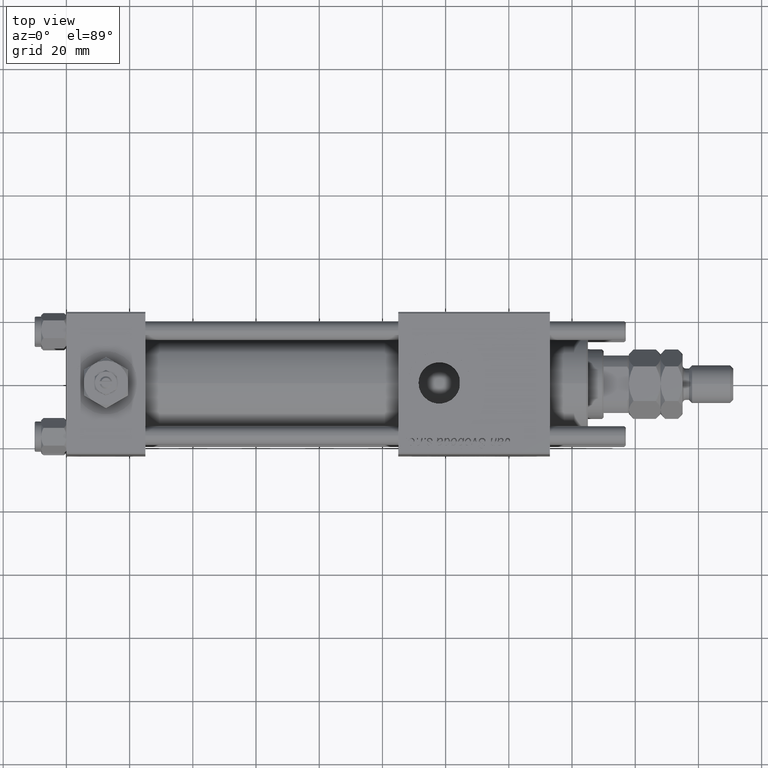
[diagram: clean part render]
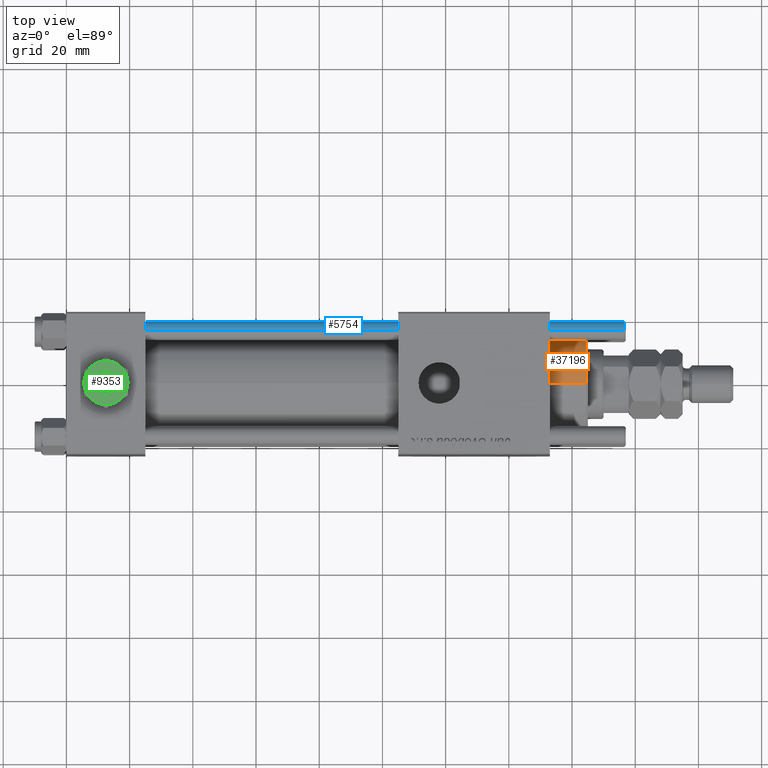
[diagram: same view with three faces highlighted in distinct colors, each labeled with its STEP entity id]
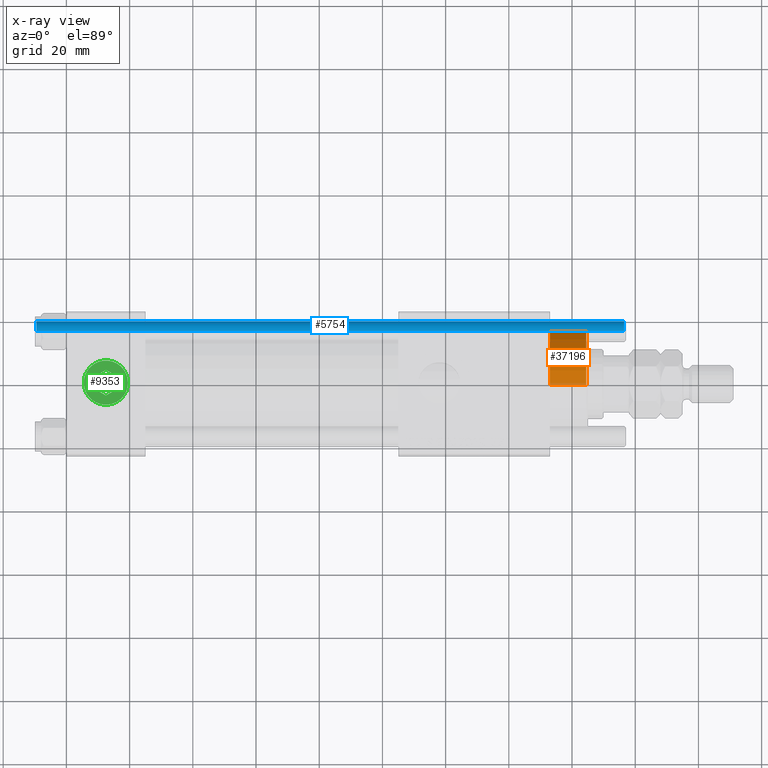
[diagram: x-ray of the same camera — body ghosted, the three highlighted faces saturated]
A machine part, top view with three faces highlighted in distinct colors.
The next image is the same camera in x-ray (body ghosted, the three faces saturated) — at least one of them is partly hidden behind the body in this view.
Their STEP definitions:

[orange] entity #37196 — the highlighted cylindrical surface (partial cylindrical patch) has radius 17 mm, axis along (-1, -0, 0).
#91 = CYLINDRICAL_SURFACE ( 'NONE', #42956, 17.00000000000000000 ) ;
#387 = DIRECTION ( 'NONE',  ( -1.000000000000000000, 0.000000000000000000, 0.000000000000000000 ) ) ;
#690 = FACE_OUTER_BOUND ( 'NONE', #24500, .T. ) ;
#2393 = VECTOR ( 'NONE', #41795, 1000.000000000000000 ) ;
#9897 = CARTESIAN_POINT ( 'NONE',  ( 17.00000000000000000, 2.081899558550500280E-15, 40.70000000000000284 ) ) ;
#10683 = ORIENTED_EDGE ( 'NONE', *, *, #26494, .F. ) ;
#10986 = ORIENTED_EDGE ( 'NONE', *, *, #14739, .T. ) ;
#11021 = AXIS2_PLACEMENT_3D ( 'NONE', #39226, #57794, #33494 ) ;
#11742 = AXIS2_PLACEMENT_3D ( 'NONE', #56541, #42538, #52562 ) ;
#14045 = ORIENTED_EDGE ( 'NONE', *, *, #48308, .T. ) ;
#14739 = EDGE_CURVE ( 'NONE', #48866, #37269, #23415, .T. ) ;
#15261 = DIRECTION ( 'NONE',  ( -0.000000000000000000, -0.000000000000000000, -1.000000000000000000 ) ) ;
#17504 = CARTESIAN_POINT ( 'NONE',  ( 17.00000000000000000, 2.081899558550500280E-15, 28.69999999999999929 ) ) ;
#19235 = CARTESIAN_POINT ( 'NONE',  ( 0.000000000000000000, 0.000000000000000000, 40.70000000000000284 ) ) ;
#23415 = CIRCLE ( 'NONE', #11742, 17.00000000000000000 ) ;
#24500 = EDGE_LOOP ( 'NONE', ( #10986, #14045, #27320, #10683 ) ) ;
#26494 = EDGE_CURVE ( 'NONE', #48866, #48135, #57406, .T. ) ;
#27320 = ORIENTED_EDGE ( 'NONE', *, *, #43351, .T. ) ;
#28725 = VERTEX_POINT ( 'NONE', #17504 ) ;
#33491 = VECTOR ( 'NONE', #52830, 1000.000000000000000 ) ;
#33494 = DIRECTION ( 'NONE',  ( 1.000000000000000000, 0.000000000000000000, 0.000000000000000000 ) ) ;
#37196 = ADVANCED_FACE ( 'NONE', ( #690 ), #91, .T. ) ;
#37230 = CIRCLE ( 'NONE', #11021, 17.00000000000000000 ) ;
#37269 = VERTEX_POINT ( 'NONE', #53230 ) ;
#38843 = CARTESIAN_POINT ( 'NONE',  ( -17.00000000000000000, 0.000000000000000000, 40.70000000000000284 ) ) ;
#39226 = CARTESIAN_POINT ( 'NONE',  ( 0.000000000000000000, 0.000000000000000000, 28.69999999999999929 ) ) ;
#41795 = DIRECTION ( 'NONE',  ( -0.000000000000000000, -0.000000000000000000, -1.000000000000000000 ) ) ;
#42094 = LINE ( 'NONE', #9897, #2393 ) ;
#42538 = DIRECTION ( 'NONE',  ( 0.000000000000000000, 0.000000000000000000, -1.000000000000000000 ) ) ;
#42956 = AXIS2_PLACEMENT_3D ( 'NONE', #19235, #15261, #387 ) ;
#43351 = EDGE_CURVE ( 'NONE', #28725, #48135, #37230, .T. ) ;
#43353 = CARTESIAN_POINT ( 'NONE',  ( -17.00000000000000000, 0.000000000000000000, 28.69999999999999929 ) ) ;
#48135 = VERTEX_POINT ( 'NONE', #43353 ) ;
#48308 = EDGE_CURVE ( 'NONE', #37269, #28725, #42094, .T. ) ;
#48866 = VERTEX_POINT ( 'NONE', #53542 ) ;
#52562 = DIRECTION ( 'NONE',  ( 1.000000000000000000, 0.000000000000000000, 0.000000000000000000 ) ) ;
#52830 = DIRECTION ( 'NONE',  ( -0.000000000000000000, -0.000000000000000000, -1.000000000000000000 ) ) ;
#53230 = CARTESIAN_POINT ( 'NONE',  ( 17.00000000000000000, 2.081899558550500280E-15, 40.19999999999999574 ) ) ;
#53542 = CARTESIAN_POINT ( 'NONE',  ( -17.00000000000000000, 0.000000000000000000, 40.19999999999999574 ) ) ;
#56541 = CARTESIAN_POINT ( 'NONE',  ( 0.000000000000000000, 0.000000000000000000, 40.19999999999999574 ) ) ;
#57406 = LINE ( 'NONE', #38843, #33491 ) ;
#57794 = DIRECTION ( 'NONE',  ( 0.000000000000000000, 0.000000000000000000, 1.000000000000000000 ) ) ;

[blue] entity #5754 — the highlighted cylindrical surface (edge-blend (fillet) strip) has radius 3 mm, axis along (1, -0, -0).
#1795 = CARTESIAN_POINT ( 'NONE',  ( 0.000000000000000000, 0.000000000000000000, 187.0000000000000000 ) ) ;
#2447 = VERTEX_POINT ( 'NONE', #56661 ) ;
#3929 = CARTESIAN_POINT ( 'NONE',  ( 0.000000000000000000, 0.000000000000000000, 0.5000000000000281997 ) ) ;
#4822 = CARTESIAN_POINT ( 'NONE',  ( 3.000000000000000444, 3.673940397442060361E-16, 187.0000000000000000 ) ) ;
#5043 = EDGE_LOOP ( 'NONE', ( #5187, #56237, #8891, #45592 ) ) ;
#5187 = ORIENTED_EDGE ( 'NONE', *, *, #22728, .T. ) ;
#5754 = ADVANCED_FACE ( 'NONE', ( #58329 ), #53148, .T. ) ;
#6777 = VECTOR ( 'NONE', #22182, 1000.000000000000000 ) ;
#7906 = CARTESIAN_POINT ( 'NONE',  ( -3.000000000000000444, 0.000000000000000000, 187.0000000000000000 ) ) ;
#8005 = AXIS2_PLACEMENT_3D ( 'NONE', #57959, #21176, #16614 ) ;
#8891 = ORIENTED_EDGE ( 'NONE', *, *, #52123, .T. ) ;
#11922 = DIRECTION ( 'NONE',  ( -0.000000000000000000, -0.000000000000000000, 1.000000000000000000 ) ) ;
#13797 = VERTEX_POINT ( 'NONE', #27803 ) ;
#16614 = DIRECTION ( 'NONE',  ( 1.000000000000000000, 0.000000000000000000, 0.000000000000000000 ) ) ;
#16708 = VERTEX_POINT ( 'NONE', #40096 ) ;
#20042 = DIRECTION ( 'NONE',  ( -0.000000000000000000, -0.000000000000000000, -1.000000000000000000 ) ) ;
#20156 = AXIS2_PLACEMENT_3D ( 'NONE', #1795, #20042, #52546 ) ;
#21176 = DIRECTION ( 'NONE',  ( 0.000000000000000000, 0.000000000000000000, -1.000000000000000000 ) ) ;
#21903 = EDGE_CURVE ( 'NONE', #2447, #32452, #22465, .T. ) ;
#22182 = DIRECTION ( 'NONE',  ( -0.000000000000000000, -0.000000000000000000, -1.000000000000000000 ) ) ;
#22465 = LINE ( 'NONE', #4822, #40951 ) ;
#22534 = CIRCLE ( 'NONE', #8005, 3.000000000000000444 ) ;
#22728 = EDGE_CURVE ( 'NONE', #13797, #2447, #22534, .T. ) ;
#27803 = CARTESIAN_POINT ( 'NONE',  ( -3.000000000000000444, 0.000000000000000000, 186.5000000000000568 ) ) ;
#30213 = EDGE_CURVE ( 'NONE', #13797, #16708, #49537, .T. ) ;
#32452 = VERTEX_POINT ( 'NONE', #56676 ) ;
#37477 = AXIS2_PLACEMENT_3D ( 'NONE', #3929, #11922, #57219 ) ;
#40096 = CARTESIAN_POINT ( 'NONE',  ( -3.000000000000000444, 0.000000000000000000, 0.5000000000000281997 ) ) ;
#40951 = VECTOR ( 'NONE', #40979, 1000.000000000000000 ) ;
#40979 = DIRECTION ( 'NONE',  ( -0.000000000000000000, -0.000000000000000000, -1.000000000000000000 ) ) ;
#44239 = CIRCLE ( 'NONE', #37477, 3.000000000000000444 ) ;
#45592 = ORIENTED_EDGE ( 'NONE', *, *, #30213, .F. ) ;
#49537 = LINE ( 'NONE', #7906, #6777 ) ;
#52123 = EDGE_CURVE ( 'NONE', #32452, #16708, #44239, .T. ) ;
#52546 = DIRECTION ( 'NONE',  ( -1.000000000000000000, 0.000000000000000000, 0.000000000000000000 ) ) ;
#53148 = CYLINDRICAL_SURFACE ( 'NONE', #20156, 3.000000000000000444 ) ;
#56237 = ORIENTED_EDGE ( 'NONE', *, *, #21903, .T. ) ;
#56661 = CARTESIAN_POINT ( 'NONE',  ( 3.000000000000000444, 3.673940397442060361E-16, 186.5000000000000568 ) ) ;
#56676 = CARTESIAN_POINT ( 'NONE',  ( 3.000000000000000444, 3.673940397442060361E-16, 0.5000000000000281997 ) ) ;
#57219 = DIRECTION ( 'NONE',  ( 1.000000000000000000, 0.000000000000000000, 0.000000000000000000 ) ) ;
#57959 = CARTESIAN_POINT ( 'NONE',  ( 0.000000000000000000, 0.000000000000000000, 186.5000000000000568 ) ) ;
#58329 = FACE_OUTER_BOUND ( 'NONE', #5043, .T. ) ;

[green] entity #9353 — the highlighted planar face has unit normal (0, 0, 1).
#318 = CARTESIAN_POINT ( 'NONE',  ( -3.499999999999998668, -2.020725942163689837, 4.299999999999999822 ) ) ;
#1488 = DIRECTION ( 'NONE',  ( 0.000000000000000000, 0.000000000000000000, 1.000000000000000000 ) ) ;
#1688 = AXIS2_PLACEMENT_3D ( 'NONE', #11076, #6513, #25060 ) ;
#2167 = DIRECTION ( 'NONE',  ( -0.8660254037844387076, 0.4999999999999998335, 0.000000000000000000 ) ) ;
#2504 = VERTEX_POINT ( 'NONE', #21379 ) ;
#3051 = CARTESIAN_POINT ( 'NONE',  ( 0.000000000000000000, 4.041451884327380562, 4.299999999999999822 ) ) ;
#4016 = EDGE_LOOP ( 'NONE', ( #27587, #13591, #43089, #46061, #53749, #37891 ) ) ;
#4260 = LINE ( 'NONE', #41315, #18385 ) ;
#4327 = DIRECTION ( 'NONE',  ( 1.000000000000000000, 0.000000000000000000, 0.000000000000000000 ) ) ;
#5327 = DIRECTION ( 'NONE',  ( 1.000000000000000000, 0.000000000000000000, 0.000000000000000000 ) ) ;
#6143 = DIRECTION ( 'NONE',  ( 0.000000000000000000, 0.000000000000000000, 1.000000000000000000 ) ) ;
#6513 = DIRECTION ( 'NONE',  ( 0.000000000000000000, 0.000000000000000000, 1.000000000000000000 ) ) ;
#8432 = ORIENTED_EDGE ( 'NONE', *, *, #32521, .T. ) ;
#8529 = DIRECTION ( 'NONE',  ( 1.000000000000000000, 0.000000000000000000, 0.000000000000000000 ) ) ;
#9353 = ADVANCED_FACE ( 'NONE', ( #31915, #35574 ), #49552, .T. ) ;
#9429 = EDGE_CURVE ( 'NONE', #29958, #14880, #4260, .T. ) ;
#9701 = VECTOR ( 'NONE', #12166, 1000.000000000000227 ) ;
#10006 = VECTOR ( 'NONE', #55192, 1000.000000000000000 ) ;
#11076 = CARTESIAN_POINT ( 'NONE',  ( 0.000000000000000000, 0.000000000000000000, 4.299999999999999822 ) ) ;
#12166 = DIRECTION ( 'NONE',  ( -0.8660254037844385966, -0.4999999999999998890, 0.000000000000000000 ) ) ;
#12365 = CIRCLE ( 'NONE', #56071, 7.000000000000001776 ) ;
#12425 = CIRCLE ( 'NONE', #56110, 7.000000000000001776 ) ;
#13545 = EDGE_CURVE ( 'NONE', #29134, #36163, #27951, .T. ) ;
#13591 = ORIENTED_EDGE ( 'NONE', *, *, #47859, .F. ) ;
#14097 = EDGE_LOOP ( 'NONE', ( #46901, #16302, #39023, #46127, #8432, #49805 ) ) ;
#14293 = CIRCLE ( 'NONE', #54069, 7.000000000000001776 ) ;
#14348 = CARTESIAN_POINT ( 'NONE',  ( -2.443687887572056883E-16, -4.041451884327378785, 4.299999999999999822 ) ) ;
#14463 = CARTESIAN_POINT ( 'NONE',  ( 0.000000000000000000, 0.000000000000000000, 4.299999999999999822 ) ) ;
#14718 = VERTEX_POINT ( 'NONE', #15196 ) ;
#14880 = VERTEX_POINT ( 'NONE', #48903 ) ;
#15196 = CARTESIAN_POINT ( 'NONE',  ( -3.500000000000000000, -6.062177826491073063, 4.299999999999999822 ) ) ;
#16302 = ORIENTED_EDGE ( 'NONE', *, *, #58550, .T. ) ;
#18005 = CARTESIAN_POINT ( 'NONE',  ( 6.999999999999994671, 3.004629197474313724E-15, 4.299999999999999822 ) ) ;
#18084 = CARTESIAN_POINT ( 'NONE',  ( -3.499999999999999112, 2.020725942163690725, 4.299999999999999822 ) ) ;
#18385 = VECTOR ( 'NONE', #44682, 1000.000000000000000 ) ;
#18520 = CARTESIAN_POINT ( 'NONE',  ( -3.499999999999998668, -2.020725942163689837, 4.299999999999999822 ) ) ;
#18554 = DIRECTION ( 'NONE',  ( 0.000000000000000000, 0.000000000000000000, 1.000000000000000000 ) ) ;
#20414 = VECTOR ( 'NONE', #26738, 1000.000000000000227 ) ;
#20493 = AXIS2_PLACEMENT_3D ( 'NONE', #14463, #46970, #5327 ) ;
#20711 = CARTESIAN_POINT ( 'NONE',  ( 0.000000000000000000, 4.041451884327380562, 4.299999999999999822 ) ) ;
#21379 = CARTESIAN_POINT ( 'NONE',  ( -3.500000000000000888, 6.062177826491073063, 4.299999999999999822 ) ) ;
#22569 = CIRCLE ( 'NONE', #37089, 7.000000000000001776 ) ;
#22971 = LINE ( 'NONE', #45755, #10006 ) ;
#23704 = CARTESIAN_POINT ( 'NONE',  ( 0.000000000000000000, 0.000000000000000000, 4.299999999999999822 ) ) ;
#25060 = DIRECTION ( 'NONE',  ( 1.000000000000000000, 0.000000000000000000, 0.000000000000000000 ) ) ;
#25697 = VECTOR ( 'NONE', #2167, 1000.000000000000114 ) ;
#25894 = CARTESIAN_POINT ( 'NONE',  ( 0.000000000000000000, 0.000000000000000000, 4.299999999999999822 ) ) ;
#26612 = CARTESIAN_POINT ( 'NONE',  ( -2.443687887572056883E-16, -4.041451884327378785, 4.299999999999999822 ) ) ;
#26738 = DIRECTION ( 'NONE',  ( 0.8660254037844385966, -0.4999999999999998890, 0.000000000000000000 ) ) ;
#26952 = VECTOR ( 'NONE', #41678, 1000.000000000000114 ) ;
#27132 = DIRECTION ( 'NONE',  ( 0.000000000000000000, 0.000000000000000000, 1.000000000000000000 ) ) ;
#27440 = EDGE_CURVE ( 'NONE', #33448, #53970, #22569, .T. ) ;
#27587 = ORIENTED_EDGE ( 'NONE', *, *, #30140, .F. ) ;
#27733 = LINE ( 'NONE', #14348, #26952 ) ;
#27951 = LINE ( 'NONE', #18520, #20414 ) ;
#29134 = VERTEX_POINT ( 'NONE', #318 ) ;
#29958 = VERTEX_POINT ( 'NONE', #41969 ) ;
#30140 = EDGE_CURVE ( 'NONE', #43350, #42165, #34651, .T. ) ;
#31915 = FACE_OUTER_BOUND ( 'NONE', #14097, .T. ) ;
#32521 = EDGE_CURVE ( 'NONE', #59500, #14718, #36972, .T. ) ;
#33448 = VERTEX_POINT ( 'NONE', #52430 ) ;
#34651 = LINE ( 'NONE', #3051, #9701 ) ;
#35574 = FACE_BOUND ( 'NONE', #4016, .T. ) ;
#35865 = CARTESIAN_POINT ( 'NONE',  ( 0.000000000000000000, 0.000000000000000000, 4.299999999999999822 ) ) ;
#36163 = VERTEX_POINT ( 'NONE', #26612 ) ;
#36778 = EDGE_CURVE ( 'NONE', #42165, #29134, #22971, .T. ) ;
#36972 = CIRCLE ( 'NONE', #20493, 7.000000000000001776 ) ;
#37089 = AXIS2_PLACEMENT_3D ( 'NONE', #23704, #18554, #8529 ) ;
#37891 = ORIENTED_EDGE ( 'NONE', *, *, #36778, .F. ) ;
#38044 = LINE ( 'NONE', #43787, #25697 ) ;
#39023 = ORIENTED_EDGE ( 'NONE', *, *, #56912, .T. ) ;
#40118 = DIRECTION ( 'NONE',  ( 0.000000000000000000, 0.000000000000000000, 1.000000000000000000 ) ) ;
#40419 = DIRECTION ( 'NONE',  ( 1.000000000000000000, 0.000000000000000000, -0.000000000000000000 ) ) ;
#41315 = CARTESIAN_POINT ( 'NONE',  ( 3.499999999999999556, -2.020725942163690281, 4.299999999999999822 ) ) ;
#41385 = CARTESIAN_POINT ( 'NONE',  ( 0.000000000000000000, 0.000000000000000000, 4.299999999999999822 ) ) ;
#41657 = AXIS2_PLACEMENT_3D ( 'NONE', #35865, #40118, #40419 ) ;
#41678 = DIRECTION ( 'NONE',  ( 0.8660254037844388186, 0.4999999999999996669, 0.000000000000000000 ) ) ;
#41969 = CARTESIAN_POINT ( 'NONE',  ( 3.500000000000000000, -2.020725942163690281, 4.299999999999999822 ) ) ;
#42165 = VERTEX_POINT ( 'NONE', #18084 ) ;
#43089 = ORIENTED_EDGE ( 'NONE', *, *, #9429, .F. ) ;
#43114 = CARTESIAN_POINT ( 'NONE',  ( 0.000000000000000000, 0.000000000000000000, 4.299999999999999822 ) ) ;
#43350 = VERTEX_POINT ( 'NONE', #20711 ) ;
#43787 = CARTESIAN_POINT ( 'NONE',  ( 3.499999999999998224, 2.020725942163691613, 4.299999999999999822 ) ) ;
#44682 = DIRECTION ( 'NONE',  ( -3.219245568722483357E-16, 1.000000000000000000, 0.000000000000000000 ) ) ;
#45755 = CARTESIAN_POINT ( 'NONE',  ( -3.499999999999999112, 2.020725942163690725, 4.299999999999999822 ) ) ;
#46061 = ORIENTED_EDGE ( 'NONE', *, *, #55424, .F. ) ;
#46127 = ORIENTED_EDGE ( 'NONE', *, *, #53989, .T. ) ;
#46901 = ORIENTED_EDGE ( 'NONE', *, *, #27440, .T. ) ;
#46970 = DIRECTION ( 'NONE',  ( 0.000000000000000000, 0.000000000000000000, 1.000000000000000000 ) ) ;
#47859 = EDGE_CURVE ( 'NONE', #14880, #43350, #38044, .T. ) ;
#48376 = DIRECTION ( 'NONE',  ( 1.000000000000000000, 0.000000000000000000, 0.000000000000000000 ) ) ;
#48903 = CARTESIAN_POINT ( 'NONE',  ( 3.499999999999998224, 2.020725942163691613, 4.299999999999999822 ) ) ;
#49233 = CARTESIAN_POINT ( 'NONE',  ( -7.000000000000001776, -2.253471898105739040E-15, 4.299999999999999822 ) ) ;
#49256 = CARTESIAN_POINT ( 'NONE',  ( 3.500000000000000444, 6.062177826491073063, 4.299999999999999822 ) ) ;
#49552 = PLANE ( 'NONE',  #41657 ) ;
#49805 = ORIENTED_EDGE ( 'NONE', *, *, #58275, .T. ) ;
#52430 = CARTESIAN_POINT ( 'NONE',  ( 3.500000000000000888, -6.062177826491073951, 4.299999999999999822 ) ) ;
#53749 = ORIENTED_EDGE ( 'NONE', *, *, #13545, .F. ) ;
#53970 = VERTEX_POINT ( 'NONE', #18005 ) ;
#53989 = EDGE_CURVE ( 'NONE', #2504, #59500, #14293, .T. ) ;
#54069 = AXIS2_PLACEMENT_3D ( 'NONE', #41385, #27132, #4327 ) ;
#54236 = CIRCLE ( 'NONE', #1688, 7.000000000000001776 ) ;
#55192 = DIRECTION ( 'NONE',  ( 1.073081856240828196E-16, -1.000000000000000000, 0.000000000000000000 ) ) ;
#55424 = EDGE_CURVE ( 'NONE', #36163, #29958, #27733, .T. ) ;
#55644 = VERTEX_POINT ( 'NONE', #49256 ) ;
#56071 = AXIS2_PLACEMENT_3D ( 'NONE', #25894, #6143, #48376 ) ;
#56110 = AXIS2_PLACEMENT_3D ( 'NONE', #43114, #1488, #57112 ) ;
#56912 = EDGE_CURVE ( 'NONE', #55644, #2504, #12425, .T. ) ;
#57112 = DIRECTION ( 'NONE',  ( 1.000000000000000000, 0.000000000000000000, 0.000000000000000000 ) ) ;
#58275 = EDGE_CURVE ( 'NONE', #14718, #33448, #54236, .T. ) ;
#58550 = EDGE_CURVE ( 'NONE', #53970, #55644, #12365, .T. ) ;
#59500 = VERTEX_POINT ( 'NONE', #49233 ) ;